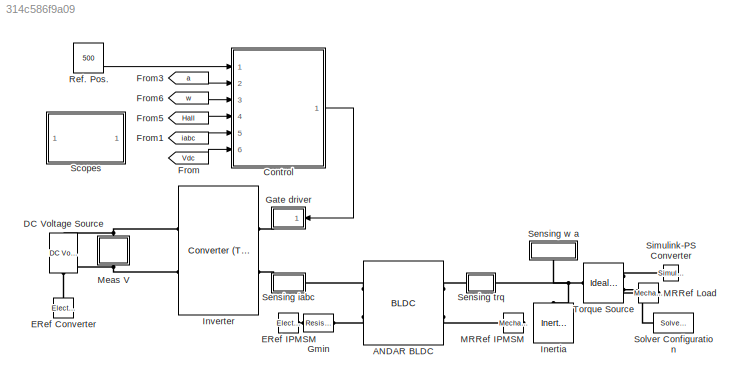
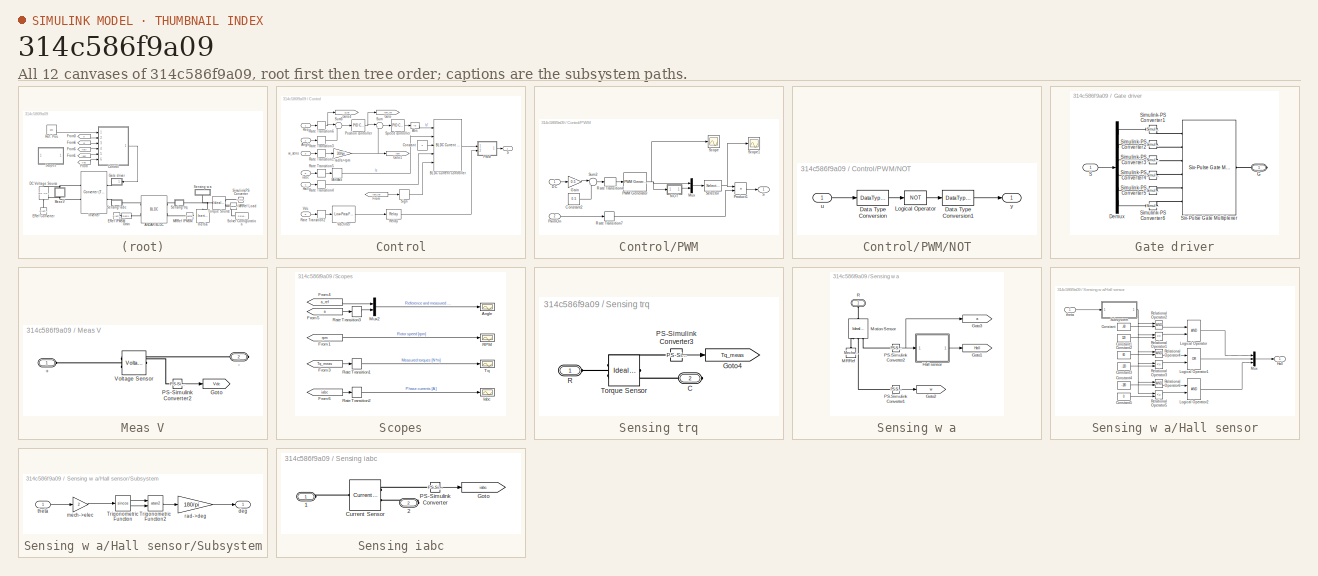
[diagram: thumbnail index - all 12 canvases of the model, root first then tree order]
MODEL slx_314c586f9a09
KIND model
CONFIG AbsTol = auto
CONFIG EnableMultiTasking = on
CONFIG FixedStep = 1e-05
CONFIG MaxStep = auto
CONFIG MinStep = auto
CONFIG RelTol = 1e-3
CONFIG SampleTimeConstraint = Unconstrained
CONFIG SolverName = FixedStepDiscrete
CONFIG StartTime = 0.0
CONFIG StopFcn = ee_addSimlogTimeStamp(bdroot)
CONFIG StopTime = 1.4
BLOCK [Reference] ANDAR BLDC  REF=ee_lib/Electromechanical/Permanent Magnet/BLDC
  Ports = [0, 0, 0, 0, 0, 2, 2]
  SourceBlock = ee_lib/Electromechanical/Permanent Magnet/BLDC
  SourceProductBaseCode = PS
  SourceType = BLDC
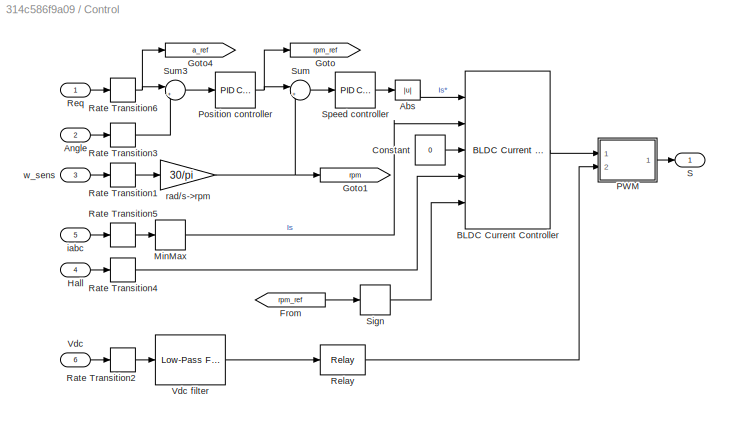
BLOCK [SubSystem] Control
  NameLocation = top
  Ports = [6, 1]
  RequestExecContextInheritance = off
BLOCK [Abs] Control/Abs
  SaturateOnIntegerOverflow = off
BLOCK [Inport] Control/Angle
  Port = 2
BLOCK [Reference] Control/BLDC Current Controller  REF=eeBldcCurrentController/BLDC Current Controller
  Ports = [5, 1]
  SourceBlock = eeBldcCurrentController/BLDC Current Controller
  SourceProductBaseCode = PS
  SourceType = BLDC Current Controller
BLOCK [Constant] Control/Constant
  Value = 0
BLOCK [From] Control/From
  GotoTag = rpm_ref
BLOCK [Goto] Control/Goto
  GotoTag = rpm_ref
BLOCK [Goto] Control/Goto1
  GotoTag = rpm
  TagVisibility = global
BLOCK [Goto] Control/Goto4
  GotoTag = a_ref
  TagVisibility = global
BLOCK [Inport] Control/Hall
  Port = 4
BLOCK [MinMax] Control/MinMax
  Function = max
  Ports = [1, 1]
BLOCK [SubSystem] Control/PWM
  Ports = [2, 1]
  RequestExecContextInheritance = off
BLOCK [Constant] Control/PWM/Constant2
  SampleTime = 1e-04
  Value = 0.5
BLOCK [Inport] Control/PWM/DC
BLOCK [Gain] Control/PWM/Gain
  Gain = 0.5
BLOCK [Mux] Control/PWM/Mux
  DisplayOption = bar
  Inputs = 2
  Ports = [2, 1]
BLOCK [SubSystem] Control/PWM/NOT
  Ports = [1, 1]
  RequestExecContextInheritance = off
BLOCK [DataTypeConversion] Control/PWM/NOT/Data Type Conversion
  RndMeth = Floor
  SaturateOnIntegerOverflow = off
BLOCK [DataTypeConversion] Control/PWM/NOT/Data Type Conversion1
  RndMeth = Floor
  SaturateOnIntegerOverflow = off
BLOCK [Logic] Control/PWM/NOT/Logical Operator
  AllPortsSameDT = off
  Operator = NOT
  OutDataTypeStr = boolean
  Ports = [1, 1]
BLOCK [Inport] Control/PWM/NOT/u
BLOCK [Outport] Control/PWM/NOT/y
  VectorParamsAs1DForOutWhenUnconnected = off
BLOCK [Reference] Control/PWM/PWM Generator  REF=eePwmGenerator/PWM Generator
  Ports = [1, 1]
  SourceBlock = eePwmGenerator/PWM Generator
  SourceProductBaseCode = PS
  SourceType = PWM Generator
BLOCK [Product] Control/PWM/Product1
  Ports = [2, 1]
BLOCK [Inport] Control/PWM/PwmOn
  Port = 2
BLOCK [RateTransition] Control/PWM/Rate Transition4
  OutPortSampleTime = 1e-05
BLOCK [RateTransition] Control/PWM/Rate Transition7
  OutPortSampleTime = 1e-05
BLOCK [Outport] Control/PWM/S
  VectorParamsAs1DForOutWhenUnconnected = off
BLOCK [Scope] Control/PWM/Scope
  Floating = off
  NumInputPorts = 1
  Ports = [1]
  ScopeSpecificationString = Simulink.scopes.TimeScopeBlockCfg('CurrentConfiguration', extmgr.ConfigurationSet(extmgr.Configuration('Core','General UI',true),extmgr.Configuration('Core','Source UI',true),extmgr.Configuration('Sources','WiredSimulink',true,'DataLoggingVariableName','ScopeData1'),extmgr.Configuration('Visuals','Time Domain',true),extmgr.Configuration('Tools','Plot Navigation',true),extmgr.Configuration('Tools',...<+40ch>
BLOCK [Scope] Control/PWM/Scope1
  Floating = off
  NumInputPorts = 1
  Ports = [1]
  ScopeSpecificationString = Simulink.scopes.TimeScopeBlockCfg('CurrentConfiguration', extmgr.ConfigurationSet(extmgr.Configuration('Core','General UI',true),extmgr.Configuration('Core','Source UI',true),extmgr.Configuration('Sources','WiredSimulink',true,'DataLoggingVariableName','ScopeData2'),extmgr.Configuration('Visuals','Time Domain',true,'SerializedDisplays',{struct('MinYLimReal','-0.125','MaxYLimReal','1.125','YLabelRe...<+1420ch>
BLOCK [Selector] Control/PWM/Selector
  IndexOptions = Index vector (dialog)
  Indices = [1 4 2 5 3 6]
  InputPortWidth = 6
  OutputSizes = 1
  Ports = [1, 1]
BLOCK [Sum] Control/PWM/Sum2
  Inputs = |++
  Ports = [2, 1]
BLOCK [Reference] Control/Position controller  REF=pid_lib/PID Controller
  Ports = [1, 1]
  SourceBlock = pid_lib/PID Controller
  SourceProductBaseCode = SL
  SourceType = PID 1dof
BLOCK [RateTransition] Control/Rate Transition1
BLOCK [RateTransition] Control/Rate Transition2
  OutPortSampleTime = 1e-04
BLOCK [RateTransition] Control/Rate Transition3
BLOCK [RateTransition] Control/Rate Transition4
  OutPortSampleTime = 1e-04
BLOCK [RateTransition] Control/Rate Transition5
  OutPortSampleTime = 1e-04
BLOCK [RateTransition] Control/Rate Transition6
BLOCK [Relay] Control/Relay
  OffSwitchValue = 28/4
  OnSwitchValue = 28/2
BLOCK [Inport] Control/Req
BLOCK [Outport] Control/S
  VectorParamsAs1DForOutWhenUnconnected = off
BLOCK [Signum] Control/Sign
BLOCK [Reference] Control/Speed controller  REF=pid_lib/PID Controller
  Ports = [1, 1]
  SourceBlock = pid_lib/PID Controller
  SourceProductBaseCode = SL
  SourceType = PID 1dof
BLOCK [Sum] Control/Sum
  Inputs = |+-
  Ports = [2, 1]
BLOCK [Sum] Control/Sum3
  Inputs = |+-
  Ports = [2, 1]
BLOCK [Inport] Control/Vdc
  Port = 6
BLOCK [Reference] Control/Vdc filter  REF=eeGeneralControl/Low-Pass Filter
(Discrete or Continuous)
  Ports = [1, 1]
  SourceBlock = eeGeneralControl/Low-Pass Filter\n(Discrete or Continuous)
  SourceProductBaseCode = PS
  SourceType = Low-Pass Filter (Discrete or Continuous)
BLOCK [Inport] Control/iabc
  Port = 5
BLOCK [Gain] Control/rad//s->rpm
  Gain = 30/pi
BLOCK [Inport] Control/w_sens
  Port = 3
BLOCK [Reference] DC Voltage Source  REF=fl_lib/Electrical/Electrical Sources/DC Voltage Source
  NameLocation = left
  Ports = [0, 0, 0, 0, 0, 1, 1]
  SourceBlock = fl_lib/Electrical/Electrical Sources/DC Voltage Source
  SourceProductBaseCode = SS
  SourceType = DC Voltage Source
BLOCK [Reference] ERef Converter  REF=fl_lib/Electrical/Electrical Elements/Electrical Reference
  NameLocation = right
  Ports = [0, 0, 0, 0, 0, 1]
  SourceBlock = fl_lib/Electrical/Electrical Elements/Electrical Reference
  SourceProductBaseCode = SS
  SourceType = Electrical Reference
BLOCK [Reference] ERef IPMSM  REF=fl_lib/Electrical/Electrical Elements/Electrical Reference
  Ports = [0, 0, 0, 0, 0, 1]
  SourceBlock = fl_lib/Electrical/Electrical Elements/Electrical Reference
  SourceProductBaseCode = SS
  SourceType = Electrical Reference
BLOCK [From] From
  GotoTag = Vdc
  TagVisibility = global
BLOCK [From] From1
  GotoTag = iabc
  TagVisibility = global
BLOCK [From] From3
  GotoTag = a
  TagVisibility = global
BLOCK [From] From5
  GotoTag = Hall
  TagVisibility = global
BLOCK [From] From6
  GotoTag = w
  TagVisibility = global
BLOCK [SubSystem] Gate driver
  NameLocation = top
  Ports = [1, 0, 0, 0, 0, 0, 1]
  RequestExecContextInheritance = off
BLOCK [Demux] Gate driver/Demux
  Outputs = 6
  Ports = [1, 6]
BLOCK [PMIOPort] Gate driver/G
  Side = Right
BLOCK [Inport] Gate driver/S
BLOCK [Reference] Gate driver/Simulink-PS Converter1  REF=nesl_utility/Simulink-PS
Converter
  Ports = [1, 0, 0, 0, 0, 0, 1]
  SourceBlock = nesl_utility/Simulink-PS\nConverter
  SourceProductBaseCode = PW,SS
  SourceType = Simulink-PS\nConverter
BLOCK [Reference] Gate driver/Simulink-PS Converter2  REF=nesl_utility/Simulink-PS
Converter
  Ports = [1, 0, 0, 0, 0, 0, 1]
  SourceBlock = nesl_utility/Simulink-PS\nConverter
  SourceProductBaseCode = PW,SS
  SourceType = Simulink-PS\nConverter
BLOCK [Reference] Gate driver/Simulink-PS Converter3  REF=nesl_utility/Simulink-PS
Converter
  Ports = [1, 0, 0, 0, 0, 0, 1]
  SourceBlock = nesl_utility/Simulink-PS\nConverter
  SourceProductBaseCode = PW,SS
  SourceType = Simulink-PS\nConverter
BLOCK [Reference] Gate driver/Simulink-PS Converter4  REF=nesl_utility/Simulink-PS
Converter
  Ports = [1, 0, 0, 0, 0, 0, 1]
  SourceBlock = nesl_utility/Simulink-PS\nConverter
  SourceProductBaseCode = PW,SS
  SourceType = Simulink-PS\nConverter
BLOCK [Reference] Gate driver/Simulink-PS Converter5  REF=nesl_utility/Simulink-PS
Converter
  Ports = [1, 0, 0, 0, 0, 0, 1]
  SourceBlock = nesl_utility/Simulink-PS\nConverter
  SourceProductBaseCode = PW,SS
  SourceType = Simulink-PS\nConverter
BLOCK [Reference] Gate driver/Simulink-PS Converter6  REF=nesl_utility/Simulink-PS
Converter
  Ports = [1, 0, 0, 0, 0, 0, 1]
  SourceBlock = nesl_utility/Simulink-PS\nConverter
  SourceProductBaseCode = PW,SS
  SourceType = Simulink-PS\nConverter
BLOCK [Reference] Gate driver/Six-Pulse Gate Multiplexer  REF=ee_lib/Semiconductors &
Converters/Converters/Six-Pulse Gate
Multiplexer
  Ports = [0, 0, 0, 0, 0, 6, 1]
  SourceBlock = ee_lib/Semiconductors &\nConverters/Converters/Six-Pulse Gate\nMultiplexer
  SourceProductBaseCode = PS
  SourceType = Six-Pulse Gate\nMultiplexer
BLOCK [Reference] Gmin  REF=fl_lib/Electrical/Electrical Elements/Resistor
  Ports = [0, 0, 0, 0, 0, 1, 1]
  SourceBlock = fl_lib/Electrical/Electrical Elements/Resistor
  SourceProductBaseCode = SS
  SourceType = Resistor
BLOCK [Reference] Inertia  REF=fl_lib/Mechanical/Rotational Elements/Inertia
  NameLocation = left
  Ports = [0, 0, 0, 0, 0, 1]
  SourceBlock = fl_lib/Mechanical/Rotational Elements/Inertia
  SourceProductBaseCode = SS
  SourceType = Inertia
BLOCK [Reference] Inverter  REF=ee_lib/Semiconductors &
Converters/Converters/Converter
(Three-Phase)
  Ports = [0, 0, 0, 0, 0, 2, 2]
  SourceBlock = ee_lib/Semiconductors &\nConverters/Converters/Converter\n(Three-Phase)
  SourceProductBaseCode = PS
  SourceType = Converter\n(Three-Phase)
BLOCK [Reference] MRRef IPMSM  REF=fl_lib/Mechanical/Rotational Elements/Mechanical
Rotational Reference
  NameLocation = top
  Ports = [0, 0, 0, 0, 0, 1]
  SourceBlock = fl_lib/Mechanical/Rotational Elements/Mechanical\nRotational Reference
  SourceProductBaseCode = SS
  SourceType = Mechanical\nRotational Reference
BLOCK [Reference] MRRef Load  REF=fl_lib/Mechanical/Rotational Elements/Mechanical
Rotational Reference
  NameLocation = top
  Ports = [0, 0, 0, 0, 0, 1]
  SourceBlock = fl_lib/Mechanical/Rotational Elements/Mechanical\nRotational Reference
  SourceProductBaseCode = SS
  SourceType = Mechanical\nRotational Reference
BLOCK [SubSystem] Meas V
  NameLocation = right
  Ports = [0, 0, 0, 0, 0, 1, 1]
  RequestExecContextInheritance = off
BLOCK [PMIOPort] Meas V/+
  Side = Left
BLOCK [PMIOPort] Meas V/-
  Port = 2
  Side = Right
BLOCK [Goto] Meas V/Goto
  GotoTag = Vdc
  TagVisibility = global
BLOCK [Reference] Meas V/PS-Simulink Converter2  REF=nesl_utility/PS-Simulink
Converter
  Ports = [0, 1, 0, 0, 0, 1]
  SourceBlock = nesl_utility/PS-Simulink\nConverter
  SourceProductBaseCode = PW,SS
  SourceType = PS-Simulink\nConverter
BLOCK [Reference] Meas V/Voltage Sensor  REF=fl_lib/Electrical/Electrical Sensors/Voltage Sensor
  NameLocation = top
  Ports = [0, 0, 0, 0, 0, 1, 2]
  SourceBlock = fl_lib/Electrical/Electrical Sensors/Voltage Sensor
  SourceProductBaseCode = SS
  SourceType = Voltage Sensor
BLOCK [Constant] Ref. Pos.
  Value = 500
BLOCK [SubSystem] Scopes
  Ports = []
  RequestExecContextInheritance = off
BLOCK [Scope] Scopes/Angle
  Floating = off
  NumInputPorts = 1
  Ports = [1]
  ScopeSpecificationString = Simulink.scopes.TimeScopeBlockCfg('CurrentConfiguration', extmgr.ConfigurationSet(extmgr.Configuration('Core','General UI',true),extmgr.Configuration('Core','Source UI',true),extmgr.Configuration('Sources','WiredSimulink',true,'DataLoggingVariableName','ScopeData4','DataLoggingSaveFormat','Array','DataLoggingDecimation','1','DataLoggingDecimateData',true),extmgr.Configuration('Visuals','Time Domai...<+1594ch>
BLOCK [From] Scopes/From1
  GotoTag = rpm
  TagVisibility = global
BLOCK [From] Scopes/From3
  GotoTag = Tq_meas
  TagVisibility = global
BLOCK [From] Scopes/From4
  GotoTag = a_ref
  TagVisibility = global
BLOCK [From] Scopes/From5
  GotoTag = a
  TagVisibility = global
BLOCK [From] Scopes/From6
  GotoTag = iabc
  TagVisibility = global
BLOCK [Scope] Scopes/Iabc
  Floating = off
  NumInputPorts = 1
  Ports = [1]
  ScopeSpecificationString = Simulink.scopes.TimeScopeBlockCfg('CurrentConfiguration', extmgr.ConfigurationSet(extmgr.Configuration('Core','General UI',true),extmgr.Configuration('Core','Source UI',true),extmgr.Configuration('Sources','WiredSimulink',true,'DataLoggingVariableName','ScopeData1','DataLoggingSaveFormat','Array','DataLoggingDecimation','1','DataLoggingDecimateData',true),extmgr.Configuration('Visuals','Time Domai...<+1611ch>
BLOCK [Mux] Scopes/Mux2
  DisplayOption = bar
  Inputs = 2
  Ports = [2, 1]
BLOCK [Scope] Scopes/RPM
  Floating = off
  NumInputPorts = 1
  Ports = [1]
  ScopeSpecificationString = Simulink.scopes.TimeScopeBlockCfg('CurrentConfiguration', extmgr.ConfigurationSet(extmgr.Configuration('Core','General UI',true),extmgr.Configuration('Core','Source UI',true),extmgr.Configuration('Sources','WiredSimulink',true,'DataLoggingVariableName','ScopeData5','DataLoggingSaveFormat','Array','DataLoggingDecimation','1','DataLoggingDecimateData',true),extmgr.Configuration('Visuals','Time Domai...<+1560ch>
BLOCK [RateTransition] Scopes/Rate Transition1
  OutPortSampleTime = 1e-04
BLOCK [RateTransition] Scopes/Rate Transition2
  OutPortSampleTime = 1e-04
BLOCK [RateTransition] Scopes/Rate Transition3
  OutPortSampleTime = 1e-04
BLOCK [Scope] Scopes/Tq
  Floating = off
  NumInputPorts = 1
  Ports = [1]
  ScopeSpecificationString = Simulink.scopes.TimeScopeBlockCfg('CurrentConfiguration', extmgr.ConfigurationSet(extmgr.Configuration('Core','General UI',true),extmgr.Configuration('Core','Source UI',true),extmgr.Configuration('Sources','WiredSimulink',true,'DataLoggingVariableName','ScopeData7','DataLoggingSaveFormat','Array','DataLoggingDecimation','1','DataLoggingDecimateData',true),extmgr.Configuration('Visuals','Time Domai...<+1555ch>
BLOCK [SubSystem] Sensing iabc
  Ports = [0, 0, 0, 0, 0, 1, 1]
  RequestExecContextInheritance = off
BLOCK [PMIOPort] Sensing iabc/1
  Side = Left
BLOCK [PMIOPort] Sensing iabc/2
  Port = 2
  Side = Right
BLOCK [Reference] Sensing iabc/Current Sensor  REF=ee_lib/Sensors &
Transducers/Current Sensor
(Three-Phase)
  Ports = [0, 0, 0, 0, 0, 1, 2]
  SourceBlock = ee_lib/Sensors &\nTransducers/Current Sensor\n(Three-Phase)
  SourceProductBaseCode = PS
  SourceType = Current Sensor\n(Three-Phase)
BLOCK [Goto] Sensing iabc/Goto
  GotoTag = iabc
  TagVisibility = global
BLOCK [Reference] Sensing iabc/PS-Simulink Converter  REF=nesl_utility/PS-Simulink
Converter
  Ports = [0, 1, 0, 0, 0, 1]
  SourceBlock = nesl_utility/PS-Simulink\nConverter
  SourceProductBaseCode = PW,SS
  SourceType = PS-Simulink\nConverter
BLOCK [SubSystem] Sensing trq
  Ports = [0, 0, 0, 0, 0, 1, 1]
  RequestExecContextInheritance = off
BLOCK [PMIOPort] Sensing trq/C
  Port = 2
  Side = Right
BLOCK [Goto] Sensing trq/Goto4
  GotoTag = Tq_meas
  TagVisibility = global
BLOCK [Reference] Sensing trq/PS-Simulink Converter3  REF=nesl_utility/PS-Simulink
Converter
  Ports = [0, 1, 0, 0, 0, 1]
  SourceBlock = nesl_utility/PS-Simulink\nConverter
  SourceProductBaseCode = PW,SS
  SourceType = PS-Simulink\nConverter
BLOCK [PMIOPort] Sensing trq/R
  Side = Left
BLOCK [Reference] Sensing trq/Torque Sensor  REF=fl_lib/Mechanical/Mechanical Sensors/Ideal Torque Sensor
  Ports = [0, 0, 0, 0, 0, 1, 2]
  SourceBlock = fl_lib/Mechanical/Mechanical Sensors/Ideal Torque Sensor
  SourceProductBaseCode = SS
  SourceType = Ideal Torque Sensor
BLOCK [SubSystem] Sensing w a
  NameLocation = right
  Ports = [0, 0, 0, 0, 0, 1]
  RequestExecContextInheritance = off
BLOCK [Goto] Sensing w a/Goto1
  GotoTag = Hall
  TagVisibility = global
BLOCK [Goto] Sensing w a/Goto2
  GotoTag = w
  TagVisibility = global
BLOCK [Goto] Sensing w a/Goto3
  GotoTag = a
  TagVisibility = global
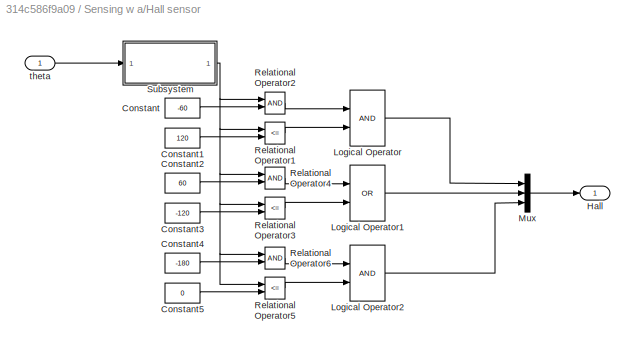
BLOCK [SubSystem] Sensing w a/Hall sensor
  Ports = [1, 1]
  RequestExecContextInheritance = off
BLOCK [Constant] Sensing w a/Hall sensor/Constant
  Value = -60
BLOCK [Constant] Sensing w a/Hall sensor/Constant1
  Value = 120
BLOCK [Constant] Sensing w a/Hall sensor/Constant2
  Value = 60
BLOCK [Constant] Sensing w a/Hall sensor/Constant3
  Value = -120
BLOCK [Constant] Sensing w a/Hall sensor/Constant4
  Value = -180
BLOCK [Constant] Sensing w a/Hall sensor/Constant5
  Value = 0
BLOCK [Outport] Sensing w a/Hall sensor/Hall
  VectorParamsAs1DForOutWhenUnconnected = off
BLOCK [Logic] Sensing w a/Hall sensor/Logical Operator
  AllPortsSameDT = off
  OutDataTypeStr = boolean
  Ports = [2, 1]
BLOCK [Logic] Sensing w a/Hall sensor/Logical Operator1
  AllPortsSameDT = off
  Operator = OR
  OutDataTypeStr = boolean
  Ports = [2, 1]
BLOCK [Logic] Sensing w a/Hall sensor/Logical Operator2
  AllPortsSameDT = off
  OutDataTypeStr = boolean
  Ports = [2, 1]
BLOCK [Mux] Sensing w a/Hall sensor/Mux
  DisplayOption = bar
  Inputs = 3
  Ports = [3, 1]
BLOCK [RelationalOperator] Sensing w a/Hall sensor/Relational Operator1
  Operator = <=
  Ports = [2, 1]
BLOCK [RelationalOperator] Sensing w a/Hall sensor/Relational Operator2
  Ports = [2, 1]
BLOCK [RelationalOperator] Sensing w a/Hall sensor/Relational Operator3
  Operator = <=
  Ports = [2, 1]
BLOCK [RelationalOperator] Sensing w a/Hall sensor/Relational Operator4
  Ports = [2, 1]
BLOCK [RelationalOperator] Sensing w a/Hall sensor/Relational Operator5
  Operator = <=
  Ports = [2, 1]
BLOCK [RelationalOperator] Sensing w a/Hall sensor/Relational Operator6
  Ports = [2, 1]
BLOCK [SubSystem] Sensing w a/Hall sensor/Subsystem
  Ports = [1, 1]
  RequestExecContextInheritance = off
BLOCK [Trigonometry] Sensing w a/Hall sensor/Subsystem/Trigonometric Function
  Operator = sincos
  Ports = [1, 2]
BLOCK [Trigonometry] Sensing w a/Hall sensor/Subsystem/Trigonometric Function2
  Operator = atan2
  Ports = [2, 1]
BLOCK [Outport] Sensing w a/Hall sensor/Subsystem/deg
  VectorParamsAs1DForOutWhenUnconnected = off
BLOCK [Gain] Sensing w a/Hall sensor/Subsystem/mech->elec
  Gain = 2
BLOCK [Gain] Sensing w a/Hall sensor/Subsystem/rad->deg
  Gain = 180/pi
  OutDataTypeStr = Inherit: Same as input
  ParamDataTypeStr = Inherit: Same as input
  SaturateOnIntegerOverflow = on
BLOCK [Inport] Sensing w a/Hall sensor/Subsystem/theta
BLOCK [Inport] Sensing w a/Hall sensor/theta
BLOCK [Reference] Sensing w a/MRRef  REF=fl_lib/Mechanical/Rotational Elements/Mechanical
Rotational Reference
  NameLocation = left
  Ports = [0, 0, 0, 0, 0, 1]
  SourceBlock = fl_lib/Mechanical/Rotational Elements/Mechanical\nRotational Reference
  SourceProductBaseCode = SS
  SourceType = Mechanical\nRotational Reference
BLOCK [Reference] Sensing w a/Motion Sensor  REF=fl_lib/Mechanical/Mechanical Sensors/Ideal Rotational
Motion Sensor
  NameLocation = right
  Ports = [0, 0, 0, 0, 0, 1, 3]
  SourceBlock = fl_lib/Mechanical/Mechanical Sensors/Ideal Rotational\nMotion Sensor
  SourceProductBaseCode = SS
  SourceType = Ideal Rotational\nMotion Sensor
BLOCK [Reference] Sensing w a/PS-Simulink Converter1  REF=nesl_utility/PS-Simulink
Converter
  Ports = [0, 1, 0, 0, 0, 1]
  SourceBlock = nesl_utility/PS-Simulink\nConverter
  SourceProductBaseCode = PW,SS
  SourceType = PS-Simulink\nConverter
BLOCK [Reference] Sensing w a/PS-Simulink Converter2  REF=nesl_utility/PS-Simulink
Converter
  Ports = [0, 1, 0, 0, 0, 1]
  SourceBlock = nesl_utility/PS-Simulink\nConverter
  SourceProductBaseCode = PW,SS
  SourceType = PS-Simulink\nConverter
BLOCK [PMIOPort] Sensing w a/R
  NameLocation = right
  Side = Left
BLOCK [Reference] Simulink-PS Converter  REF=nesl_utility/Simulink-PS
Converter
  Ports = [1, 0, 0, 0, 0, 0, 1]
  SourceBlock = nesl_utility/Simulink-PS\nConverter
  SourceProductBaseCode = PW,SS
  SourceType = Simulink-PS\nConverter
BLOCK [Reference] Solver Configuration  REF=nesl_utility/Solver
Configuration
  Ports = [0, 0, 0, 0, 0, 0, 1]
  SourceBlock = nesl_utility/Solver\nConfiguration
  SourceProductBaseCode = PW,SS
  SourceType = Solver\nConfiguration
BLOCK [Reference] Torque Source  REF=fl_lib/Mechanical/Mechanical Sources/Ideal Torque Source
  Ports = [0, 0, 0, 0, 0, 1, 2]
  SourceBlock = fl_lib/Mechanical/Mechanical Sources/Ideal Torque Source
  SourceProductBaseCode = SS
  SourceType = Ideal Torque Source
LINE Control/Abs:1 -> Control/BLDC Current Controller:1
LINE Control/Angle:1 -> Control/Rate Transition3:1
LINE Control/BLDC Current Controller:1 -> Control/PWM:1
LINE Control/Constant:1 -> Control/BLDC Current Controller:3
LINE Control/From:1 -> Control/Sign:1
LINE Control/Hall:1 -> Control/Rate Transition4:1
LINE Control/MinMax:1 -> Control/BLDC Current Controller:2
LINE Control/PWM/Constant2:1 -> Control/PWM/Sum2:2
LINE Control/PWM/DC:1 -> Control/PWM/Gain:1
LINE Control/PWM/Gain:1 -> Control/PWM/Sum2:1
LINE Control/PWM/Mux:1 -> Control/PWM/Selector:1
LINE Control/PWM/NOT/Data Type Conversion1:1 -> Control/PWM/NOT/y:1
LINE Control/PWM/NOT/Data Type Conversion:1 -> Control/PWM/NOT/Logical Operator:1
LINE Control/PWM/NOT/Logical Operator:1 -> Control/PWM/NOT/Data Type Conversion1:1
LINE Control/PWM/NOT/u:1 -> Control/PWM/NOT/Data Type Conversion:1
LINE Control/PWM/NOT:1 -> Control/PWM/Mux:2
NET Control/PWM/PWM Generator:1 -> Control/PWM/Mux:1, Control/PWM/NOT:1, Control/PWM/Scope:1
LINE Control/PWM/Product1:1 -> Control/PWM/S:1
LINE Control/PWM/PwmOn:1 -> Control/PWM/Rate Transition7:1
LINE Control/PWM/Rate Transition4:1 -> Control/PWM/PWM Generator:1
LINE Control/PWM/Rate Transition7:1 -> Control/PWM/Product1:2
NET Control/PWM/Selector:1 -> Control/PWM/Product1:1, Control/PWM/Scope1:1
LINE Control/PWM/Sum2:1 -> Control/PWM/Rate Transition4:1
LINE Control/PWM:1 -> Control/S:1
NET Control/Position controller:1 -> Control/Goto:1, Control/Sum:1
LINE Control/Rate Transition1:1 -> Control/rad//s->rpm:1
LINE Control/Rate Transition2:1 -> Control/Vdc filter:1
LINE Control/Rate Transition3:1 -> Control/Sum3:2
LINE Control/Rate Transition4:1 -> Control/BLDC Current Controller:4
LINE Control/Rate Transition5:1 -> Control/MinMax:1
NET Control/Rate Transition6:1 -> Control/Goto4:1, Control/Sum3:1
LINE Control/Relay:1 -> Control/PWM:2
LINE Control/Req:1 -> Control/Rate Transition6:1
LINE Control/Sign:1 -> Control/BLDC Current Controller:5
LINE Control/Speed controller:1 -> Control/Abs:1
LINE Control/Sum3:1 -> Control/Position controller:1
LINE Control/Sum:1 -> Control/Speed controller:1
LINE Control/Vdc filter:1 -> Control/Relay:1
LINE Control/Vdc:1 -> Control/Rate Transition2:1
LINE Control/iabc:1 -> Control/Rate Transition5:1
NET Control/rad//s->rpm:1 -> Control/Goto1:1, Control/Sum:2
LINE Control/w_sens:1 -> Control/Rate Transition1:1
LINE Control:1 -> Gate driver:1
LINE From1:1 -> Control:5
LINE From3:1 -> Control:2
LINE From5:1 -> Control:4
LINE From6:1 -> Control:3
LINE From:1 -> Control:6
LINE Gate driver/Demux:1 -> Gate driver/Simulink-PS Converter1:1
LINE Gate driver/Demux:2 -> Gate driver/Simulink-PS Converter2:1
LINE Gate driver/Demux:3 -> Gate driver/Simulink-PS Converter3:1
LINE Gate driver/Demux:4 -> Gate driver/Simulink-PS Converter4:1
LINE Gate driver/Demux:5 -> Gate driver/Simulink-PS Converter5:1
LINE Gate driver/Demux:6 -> Gate driver/Simulink-PS Converter6:1
LINE Gate driver/S:1 -> Gate driver/Demux:1
LINE Meas V/PS-Simulink Converter2:1 -> Meas V/Goto:1
LINE Ref. Pos.:1 -> Control:1
LINE Scopes/From1:1 -> Scopes/RPM:1
LINE Scopes/From3:1 -> Scopes/Rate Transition1:1
LINE Scopes/From4:1 -> Scopes/Mux2:1
LINE Scopes/From5:1 -> Scopes/Rate Transition3:1
LINE Scopes/From6:1 -> Scopes/Rate Transition2:1
LINE Scopes/Mux2:1 -> Scopes/Angle:1
LINE Scopes/Rate Transition1:1 -> Scopes/Tq:1
LINE Scopes/Rate Transition2:1 -> Scopes/Iabc:1
LINE Scopes/Rate Transition3:1 -> Scopes/Mux2:2
LINE Sensing iabc/PS-Simulink Converter:1 -> Sensing iabc/Goto:1
LINE Sensing trq/PS-Simulink Converter3:1 -> Sensing trq/Goto4:1
LINE Sensing w a/Hall sensor/Constant1:1 -> Sensing w a/Hall sensor/Relational Operator1:2
LINE Sensing w a/Hall sensor/Constant2:1 -> Sensing w a/Hall sensor/Relational Operator4:2
LINE Sensing w a/Hall sensor/Constant3:1 -> Sensing w a/Hall sensor/Relational Operator3:2
LINE Sensing w a/Hall sensor/Constant4:1 -> Sensing w a/Hall sensor/Relational Operator6:2
LINE Sensing w a/Hall sensor/Constant5:1 -> Sensing w a/Hall sensor/Relational Operator5:2
LINE Sensing w a/Hall sensor/Constant:1 -> Sensing w a/Hall sensor/Relational Operator2:2
LINE Sensing w a/Hall sensor/Logical Operator1:1 -> Sensing w a/Hall sensor/Mux:2
LINE Sensing w a/Hall sensor/Logical Operator2:1 -> Sensing w a/Hall sensor/Mux:3
LINE Sensing w a/Hall sensor/Logical Operator:1 -> Sensing w a/Hall sensor/Mux:1
LINE Sensing w a/Hall sensor/Mux:1 -> Sensing w a/Hall sensor/Hall:1
LINE Sensing w a/Hall sensor/Relational Operator1:1 -> Sensing w a/Hall sensor/Logical Operator:2
LINE Sensing w a/Hall sensor/Relational Operator2:1 -> Sensing w a/Hall sensor/Logical Operator:1
LINE Sensing w a/Hall sensor/Relational Operator3:1 -> Sensing w a/Hall sensor/Logical Operator1:2
LINE Sensing w a/Hall sensor/Relational Operator4:1 -> Sensing w a/Hall sensor/Logical Operator1:1
LINE Sensing w a/Hall sensor/Relational Operator5:1 -> Sensing w a/Hall sensor/Logical Operator2:2
LINE Sensing w a/Hall sensor/Relational Operator6:1 -> Sensing w a/Hall sensor/Logical Operator2:1
LINE Sensing w a/Hall sensor/Subsystem/Trigonometric Function2:1 -> Sensing w a/Hall sensor/Subsystem/rad->deg:1
LINE Sensing w a/Hall sensor/Subsystem/Trigonometric Function:1 -> Sensing w a/Hall sensor/Subsystem/Trigonometric Function2:1
LINE Sensing w a/Hall sensor/Subsystem/Trigonometric Function:2 -> Sensing w a/Hall sensor/Subsystem/Trigonometric Function2:2
LINE Sensing w a/Hall sensor/Subsystem/mech->elec:1 -> Sensing w a/Hall sensor/Subsystem/Trigonometric Function:1
LINE Sensing w a/Hall sensor/Subsystem/rad->deg:1 -> Sensing w a/Hall sensor/Subsystem/deg:1
LINE Sensing w a/Hall sensor/Subsystem/theta:1 -> Sensing w a/Hall sensor/Subsystem/mech->elec:1
NET Sensing w a/Hall sensor/Subsystem:1 -> Sensing w a/Hall sensor/Relational Operator1:1, Sensing w a/Hall sensor/Relational Operator2:1, Sensing w a/Hall sensor/Relational Operator3:1, Sensing w a/Hall sensor/Relational Operator4:1, Sensing w a/Hall sensor/Relational Operator5:1, Sensing w a/Hall sensor/Relational Operator6:1
LINE Sensing w a/Hall sensor/theta:1 -> Sensing w a/Hall sensor/Subsystem:1
LINE Sensing w a/Hall sensor:1 -> Sensing w a/Goto1:1
LINE Sensing w a/PS-Simulink Converter1:1 -> Sensing w a/Goto2:1
NET Sensing w a/PS-Simulink Converter2:1 -> Sensing w a/Goto3:1, Sensing w a/Hall sensor:1
PLINE ANDAR BLDC:LConn1 -- Sensing iabc:RConn1
PLINE ANDAR BLDC:LConn2 -- Gmin:RConn1
PLINE ANDAR BLDC:RConn1 -- Sensing trq:LConn1
PLINE ANDAR BLDC:RConn2 -- MRRef IPMSM:LConn1
PNET net1: DC Voltage Source:LConn1 -- Inverter:RConn1 -- Meas V:LConn1
PNET net2: DC Voltage Source:RConn1 -- ERef Converter:LConn1 -- Inverter:RConn2 -- Meas V:RConn1
PLINE ERef IPMSM:LConn1 -- Gmin:LConn1
PLINE Gate driver/G:RConn1 -- Gate driver/Six-Pulse Gate Multiplexer:RConn1
PLINE Gate driver/Simulink-PS Converter1:RConn1 -- Gate driver/Six-Pulse Gate Multiplexer:LConn1
PLINE Gate driver/Simulink-PS Converter2:RConn1 -- Gate driver/Six-Pulse Gate Multiplexer:LConn2
PLINE Gate driver/Simulink-PS Converter3:RConn1 -- Gate driver/Six-Pulse Gate Multiplexer:LConn3
PLINE Gate driver/Simulink-PS Converter4:RConn1 -- Gate driver/Six-Pulse Gate Multiplexer:LConn4
PLINE Gate driver/Simulink-PS Converter5:RConn1 -- Gate driver/Six-Pulse Gate Multiplexer:LConn5
PLINE Gate driver/Simulink-PS Converter6:RConn1 -- Gate driver/Six-Pulse Gate Multiplexer:LConn6
PLINE Gate driver:RConn1 -- Inverter:LConn1
PNET net3: Inertia:LConn1 -- Sensing trq:RConn1 -- Sensing w a:LConn1 -- Torque Source:LConn1
PLINE Inverter:LConn2 -- Sensing iabc:LConn1
PNET net4: MRRef Load:LConn1 -- Solver Configuration:RConn1 -- Torque Source:RConn2
PLINE Meas V/+:RConn1 -- Meas V/Voltage Sensor:LConn1
PLINE Meas V/-:RConn1 -- Meas V/Voltage Sensor:RConn2
PLINE Meas V/PS-Simulink Converter2:LConn1 -- Meas V/Voltage Sensor:RConn1
PLINE Sensing iabc/1:RConn1 -- Sensing iabc/Current Sensor:LConn1
PLINE Sensing iabc/2:RConn1 -- Sensing iabc/Current Sensor:RConn2
PLINE Sensing iabc/Current Sensor:RConn1 -- Sensing iabc/PS-Simulink Converter:LConn1
PLINE Sensing trq/C:RConn1 -- Sensing trq/Torque Sensor:RConn1
PLINE Sensing trq/PS-Simulink Converter3:LConn1 -- Sensing trq/Torque Sensor:RConn2
PLINE Sensing trq/R:RConn1 -- Sensing trq/Torque Sensor:LConn1
PLINE Sensing w a/MRRef:LConn1 -- Sensing w a/Motion Sensor:RConn1
PLINE Sensing w a/Motion Sensor:LConn1 -- Sensing w a/R:RConn1
PLINE Sensing w a/Motion Sensor:RConn2 -- Sensing w a/PS-Simulink Converter1:LConn1
PLINE Sensing w a/Motion Sensor:RConn3 -- Sensing w a/PS-Simulink Converter2:LConn1
PLINE Simulink-PS Converter:RConn1 -- Torque Source:RConn1
note: NET lines group one-source signal fan-out (src -> all destinations, sorted); 1:1 wires keep LINE; PNET lines group multi-terminal physical nets as a canonical sorted terminal list (undirected conserving connections); 2-terminal nets keep the pairwise PLINE form
